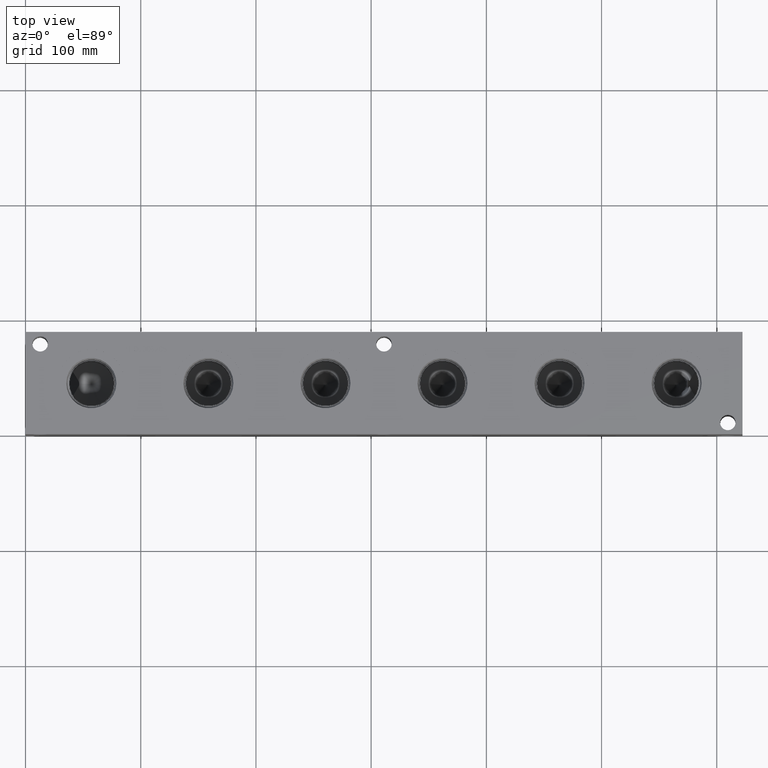
[diagram: clean part render]
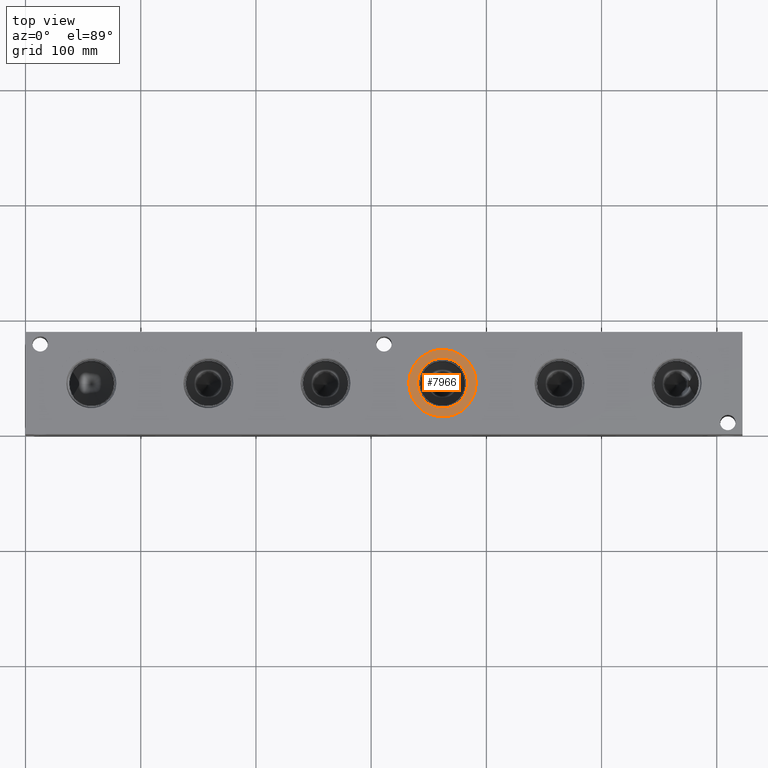
[diagram: same view with one face highlighted and labeled with its STEP entity id]
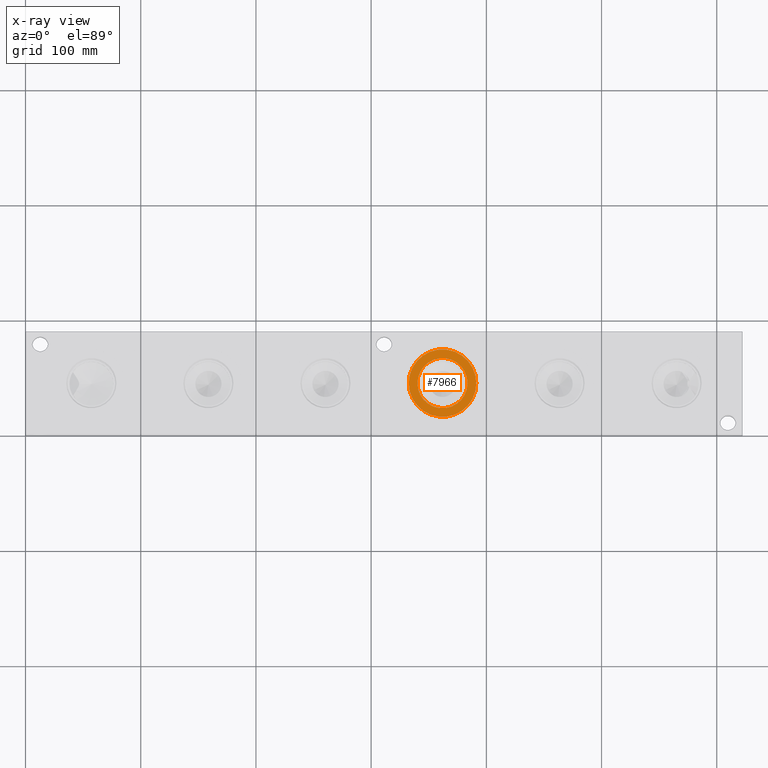
[diagram: x-ray of the same camera — body ghosted, the highlighted face saturated]
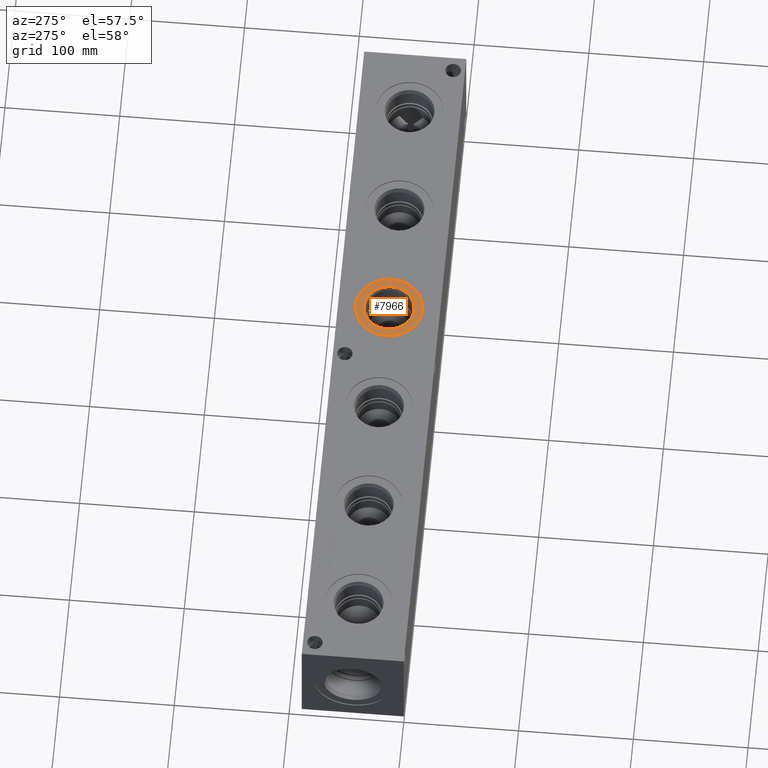
[diagram: same view with one face highlighted and labeled with its STEP entity id]
A machine part, top view. The second image highlights one B-rep face of the part: STEP entity #7966.
The next image is the same camera in x-ray: the body ghosted, the highlighted face saturated — about 0% of this face is hidden behind the body in this view.
A second angle (auxiliary view) of the same face is appended — the face is thin or edge-on in the first view.
In plain terms, the highlighted planar face has unit normal (0, 0, 1).
Its self-contained STEP definition (entity closure, byte-faithful):
#212=CIRCLE('',#8394,29.2862);
#213=CIRCLE('',#8395,29.2862);
#214=CIRCLE('',#8396,21.7551);
#317=FACE_BOUND('',#1516,.T.);
#1057=FACE_OUTER_BOUND('',#1515,.T.);
#1515=EDGE_LOOP('',(#6842,#6843));
#1516=EDGE_LOOP('',(#6844));
#3666=VERTEX_POINT('',#13761);
#3667=VERTEX_POINT('',#13762);
#3668=VERTEX_POINT('',#13765);
#4749=EDGE_CURVE('',#3666,#3667,#212,.T.);
#4750=EDGE_CURVE('',#3667,#3666,#213,.T.);
#4751=EDGE_CURVE('',#3668,#3668,#214,.T.);
#6842=ORIENTED_EDGE('',*,*,#4749,.T.);
#6843=ORIENTED_EDGE('',*,*,#4750,.T.);
#6844=ORIENTED_EDGE('',*,*,#4751,.F.);
#7285=PLANE('',#8393);
#7966=ADVANCED_FACE('',(#1057,#317),#7285,.T.);
#8393=AXIS2_PLACEMENT_3D('',#13760,#9901,#9902);
#8394=AXIS2_PLACEMENT_3D('',#13763,#9903,#9904);
#8395=AXIS2_PLACEMENT_3D('',#13764,#9905,#9906);
#8396=AXIS2_PLACEMENT_3D('',#13766,#9907,#9908);
#9901=DIRECTION('center_axis',(0.,0.,1.));
#9902=DIRECTION('ref_axis',(1.,0.,0.));
#9903=DIRECTION('center_axis',(0.,0.,1.));
#9904=DIRECTION('ref_axis',(1.,0.,0.));
#9905=DIRECTION('center_axis',(0.,0.,1.));
#9906=DIRECTION('ref_axis',(1.,0.,0.));
#9907=DIRECTION('center_axis',(0.,0.,1.));
#9908=DIRECTION('ref_axis',(1.,0.,0.));
#13760=CARTESIAN_POINT('Origin',(361.95,44.45,88.1126));
#13761=CARTESIAN_POINT('',(391.2362,44.45,88.1126));
#13762=CARTESIAN_POINT('',(332.6638,44.45,88.1126));
#13763=CARTESIAN_POINT('Origin',(361.95,44.45,88.1126));
#13764=CARTESIAN_POINT('Origin',(361.95,44.45,88.1126));
#13765=CARTESIAN_POINT('',(340.1949,44.45,88.1126));
#13766=CARTESIAN_POINT('Origin',(361.95,44.45,88.1126));